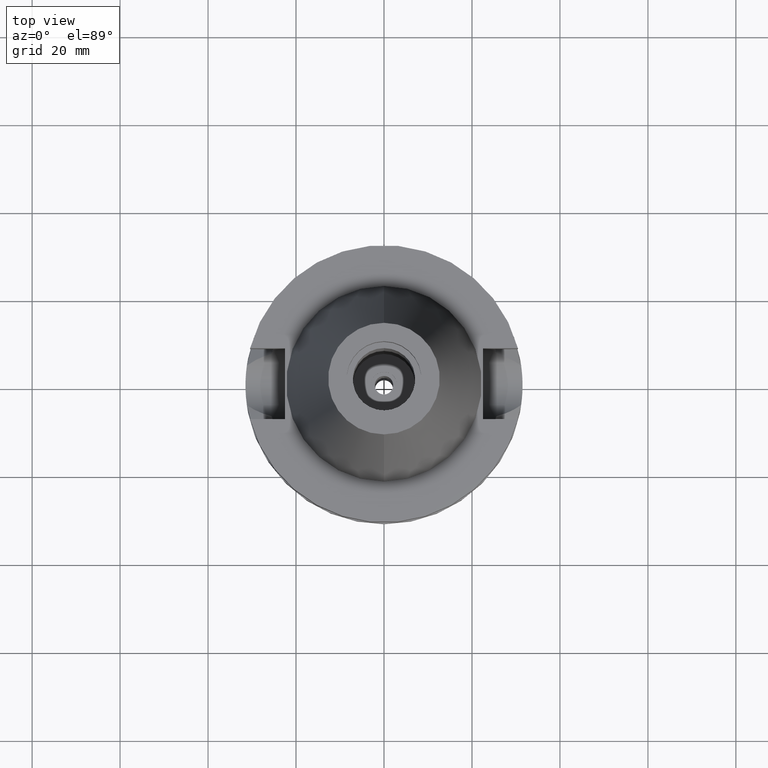
[diagram: clean part render]
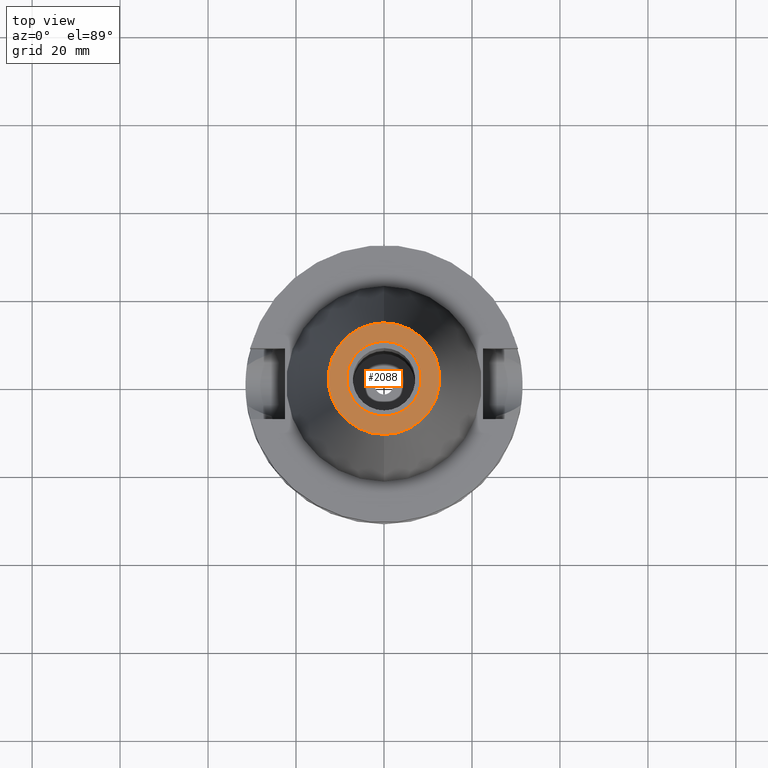
[diagram: same view with one face highlighted and labeled with its STEP entity id]
A machine part, top view. The second image highlights one B-rep face of the part: STEP entity #2088.
In plain terms, the highlighted planar face has unit normal (0, 0, -1).
Its self-contained STEP definition (entity closure, byte-faithful):
#31 = EDGE_LOOP ( 'NONE', ( #2725, #2218 ) ) ;
#127 = DIRECTION ( 'NONE',  ( 0.0000000000000000000, -1.000000000000000000, 0.0000000000000000000 ) ) ;
#171 = DIRECTION ( 'NONE',  ( 0.0000000000000000000, -1.000000000000000000, 0.0000000000000000000 ) ) ;
#172 = CIRCLE ( 'NONE', #2093, 12.68766899429999917 ) ;
#274 = DIRECTION ( 'NONE',  ( 0.0000000000000000000, 1.000000000000000000, 0.0000000000000000000 ) ) ;
#297 = DIRECTION ( 'NONE',  ( 0.0000000000000000000, 1.000000000000000000, 0.0000000000000000000 ) ) ;
#550 = CARTESIAN_POINT ( 'NONE',  ( 0.0000000000000000000, 8.500000000000000000, 65.40000000000000568 ) ) ;
#564 = AXIS2_PLACEMENT_3D ( 'NONE', #1468, #1665, #297 ) ;
#808 = EDGE_CURVE ( 'NONE', #1185, #2654, #902, .T. ) ;
#853 = CIRCLE ( 'NONE', #2534, 8.500000000000000000 ) ;
#902 = CIRCLE ( 'NONE', #2431, 8.500000000000000000 ) ;
#970 = EDGE_CURVE ( 'NONE', #2654, #1185, #853, .T. ) ;
#992 = VERTEX_POINT ( 'NONE', #1135 ) ;
#1023 = CARTESIAN_POINT ( 'NONE',  ( 0.0000000000000000000, 1.625106302469000024E-14, 65.40000000000000568 ) ) ;
#1028 = CARTESIAN_POINT ( 'NONE',  ( 0.0000000000000000000, -8.500000000000000000, 65.40000000000000568 ) ) ;
#1068 = ORIENTED_EDGE ( 'NONE', *, *, #1238, .F. ) ;
#1118 = FACE_OUTER_BOUND ( 'NONE', #2609, .T. ) ;
#1135 = CARTESIAN_POINT ( 'NONE',  ( 0.0000000000000000000, -12.68766899429999917, 65.40000000000000568 ) ) ;
#1185 = VERTEX_POINT ( 'NONE', #550 ) ;
#1238 = EDGE_CURVE ( 'NONE', #1551, #992, #1711, .T. ) ;
#1286 = AXIS2_PLACEMENT_3D ( 'NONE', #2972, #2459, #171 ) ;
#1301 = EDGE_CURVE ( 'NONE', #992, #1551, #172, .T. ) ;
#1468 = CARTESIAN_POINT ( 'NONE',  ( 0.0000000000000000000, 1.625106302469000024E-14, 65.40000000000000568 ) ) ;
#1539 = PLANE ( 'NONE',  #1286 ) ;
#1551 = VERTEX_POINT ( 'NONE', #1552 ) ;
#1552 = CARTESIAN_POINT ( 'NONE',  ( 0.0000000000000000000, 12.68766899429999917, 65.40000000000000568 ) ) ;
#1652 = DIRECTION ( 'NONE',  ( 0.0000000000000000000, 0.0000000000000000000, 1.000000000000000000 ) ) ;
#1665 = DIRECTION ( 'NONE',  ( 0.0000000000000000000, 0.0000000000000000000, -1.000000000000000000 ) ) ;
#1711 = CIRCLE ( 'NONE', #564, 12.68766899429999917 ) ;
#1813 = FACE_BOUND ( 'NONE', #31, .T. ) ;
#1992 = CARTESIAN_POINT ( 'NONE',  ( 0.0000000000000000000, 2.109086717491999768E-14, 65.40000000000000568 ) ) ;
#2088 = ADVANCED_FACE ( 'NONE', ( #1118, #1813 ), #1539, .F. ) ;
#2093 = AXIS2_PLACEMENT_3D ( 'NONE', #1023, #2679, #127 ) ;
#2114 = CARTESIAN_POINT ( 'NONE',  ( 0.0000000000000000000, 2.109086717491999768E-14, 65.40000000000000568 ) ) ;
#2218 = ORIENTED_EDGE ( 'NONE', *, *, #970, .F. ) ;
#2418 = DIRECTION ( 'NONE',  ( 0.0000000000000000000, -1.000000000000000000, 0.0000000000000000000 ) ) ;
#2431 = AXIS2_PLACEMENT_3D ( 'NONE', #2114, #1652, #274 ) ;
#2459 = DIRECTION ( 'NONE',  ( 0.0000000000000000000, 0.0000000000000000000, -1.000000000000000000 ) ) ;
#2464 = DIRECTION ( 'NONE',  ( 0.0000000000000000000, 0.0000000000000000000, 1.000000000000000000 ) ) ;
#2534 = AXIS2_PLACEMENT_3D ( 'NONE', #1992, #2464, #2418 ) ;
#2609 = EDGE_LOOP ( 'NONE', ( #1068, #2665 ) ) ;
#2654 = VERTEX_POINT ( 'NONE', #1028 ) ;
#2665 = ORIENTED_EDGE ( 'NONE', *, *, #1301, .F. ) ;
#2679 = DIRECTION ( 'NONE',  ( 0.0000000000000000000, 0.0000000000000000000, -1.000000000000000000 ) ) ;
#2725 = ORIENTED_EDGE ( 'NONE', *, *, #808, .F. ) ;
#2972 = CARTESIAN_POINT ( 'NONE',  ( 0.0000000000000000000, 2.025565805790000122E-14, 65.40000000000000568 ) ) ;